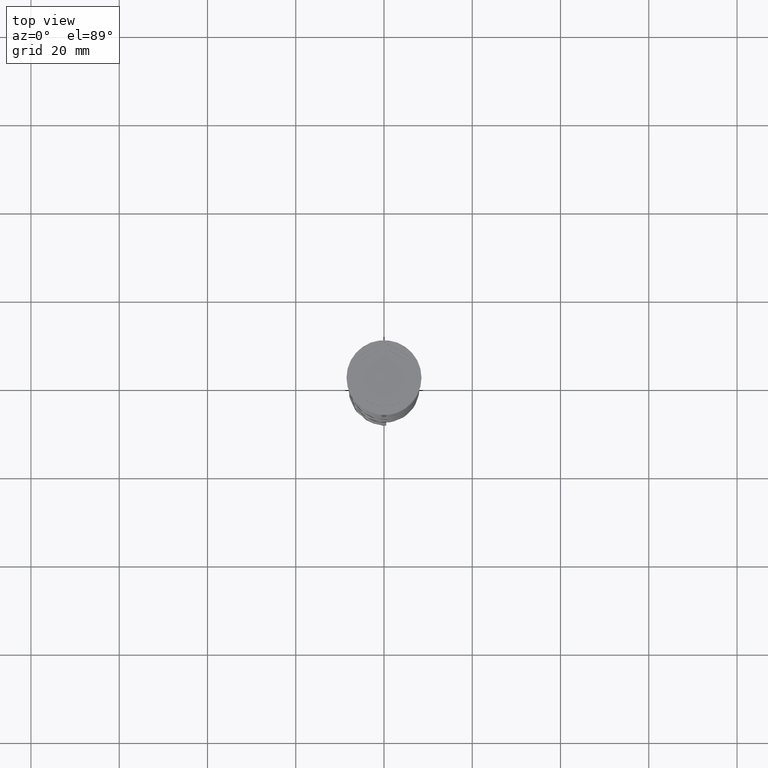
[diagram: clean part render]
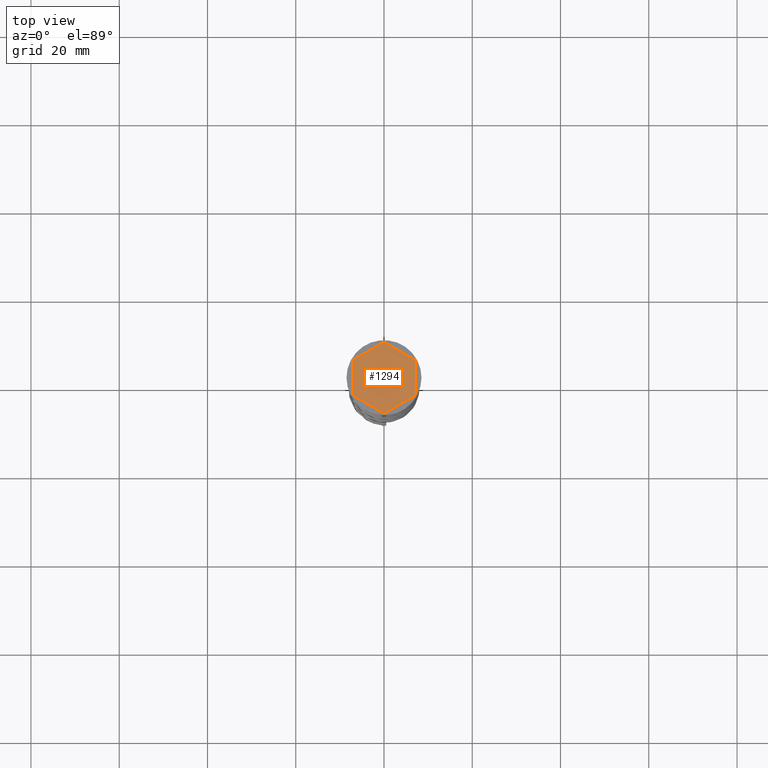
[diagram: same view with one face highlighted and labeled with its STEP entity id]
A machine part, top view. The second image highlights one B-rep face of the part: STEP entity #1294.
In plain terms, the highlighted planar face has unit normal (0, 0, 1).
Its self-contained STEP definition (entity closure, byte-faithful):
#62 = CARTESIAN_POINT ( 'NONE',  ( 7.000000000000000000, -4.041451884327381450, -1.000000000000000000 ) ) ;
#75 = CARTESIAN_POINT ( 'NONE',  ( -6.000000000000000000, -3.464101615137754830, -1.000000000000000888 ) ) ;
#84 = AXIS2_PLACEMENT_3D ( 'NONE', #238, #3390, #3127 ) ;
#92 = CARTESIAN_POINT ( 'NONE',  ( -5.165063509461097269, -3.946152422706633356, -1.000000000000000888 ) ) ;
#156 = VECTOR ( 'NONE', #894, 1000.000000000000227 ) ;
#197 = VERTEX_POINT ( 'NONE', #289 ) ;
#222 = DIRECTION ( 'NONE',  ( 0.8660254037844388186, -0.4999999999999998335, 0.000000000000000000 ) ) ;
#223 = VECTOR ( 'NONE', #1587, 1000.000000000000000 ) ;
#234 = PLANE ( 'NONE',  #2565 ) ;
#238 = CARTESIAN_POINT ( 'NONE',  ( 0.000000000000000000, 0.000000000000000000, -1.000000000000000000 ) ) ;
#241 = DIRECTION ( 'NONE',  ( -0.8660254037844387076, 0.4999999999999998890, 0.000000000000000000 ) ) ;
#250 = DIRECTION ( 'NONE',  ( 1.000000000000000000, 0.000000000000000000, 0.000000000000000000 ) ) ;
#261 = CARTESIAN_POINT ( 'NONE',  ( 6.000000000000000888, 2.500000000000000444, -1.000000000000000888 ) ) ;
#267 = VERTEX_POINT ( 'NONE', #2673 ) ;
#275 = CARTESIAN_POINT ( 'NONE',  ( 0.000000000000000000, 6.928203230275507885, -1.000000000000000888 ) ) ;
#289 = CARTESIAN_POINT ( 'NONE',  ( 0.8349364905389008440, -6.446152422706633800, -1.000000000000000888 ) ) ;
#311 = EDGE_CURVE ( 'NONE', #3695, #363, #2095, .T. ) ;
#333 = EDGE_CURVE ( 'NONE', #1408, #887, #3214, .T. ) ;
#350 = VERTEX_POINT ( 'NONE', #2150 ) ;
#363 = VERTEX_POINT ( 'NONE', #1551 ) ;
#379 = VERTEX_POINT ( 'NONE', #2131 ) ;
#382 = DIRECTION ( 'NONE',  ( 0.000000000000000000, 1.000000000000000000, 0.000000000000000000 ) ) ;
#393 = AXIS2_PLACEMENT_3D ( 'NONE', #1634, #3374, #2774 ) ;
#401 = ORIENTED_EDGE ( 'NONE', *, *, #311, .F. ) ;
#406 = EDGE_CURVE ( 'NONE', #197, #1318, #1903, .T. ) ;
#419 = CARTESIAN_POINT ( 'NONE',  ( 0.000000000000000000, 0.000000000000000000, -1.000000000000000000 ) ) ;
#470 = CARTESIAN_POINT ( 'NONE',  ( 2.174016704710901386E-15, -8.082903768654762899, -1.000000000000000000 ) ) ;
#492 = CARTESIAN_POINT ( 'NONE',  ( 5.999999999999999112, -2.500000000000003109, -1.000000000000000888 ) ) ;
#528 = EDGE_CURVE ( 'NONE', #1860, #629, #2262, .T. ) ;
#557 = CARTESIAN_POINT ( 'NONE',  ( -6.500000000000000888, 0.000000000000000000, -1.000000000000000000 ) ) ;
#565 = CARTESIAN_POINT ( 'NONE',  ( 0.000000000000000000, 8.082903768654762899, -1.000000000000000000 ) ) ;
#567 = AXIS2_PLACEMENT_3D ( 'NONE', #3375, #1110, #1041 ) ;
#580 = CIRCLE ( 'NONE', #84, 6.500000000000000888 ) ;
#589 = DIRECTION ( 'NONE',  ( -0.8660254037844385966, -0.4999999999999999445, 0.000000000000000000 ) ) ;
#613 = EDGE_CURVE ( 'NONE', #1326, #3309, #3165, .T. ) ;
#620 = DIRECTION ( 'NONE',  ( 0.000000000000000000, 0.000000000000000000, 1.000000000000000000 ) ) ;
#629 = VERTEX_POINT ( 'NONE', #1131 ) ;
#663 = ORIENTED_EDGE ( 'NONE', *, *, #3179, .F. ) ;
#682 = FACE_BOUND ( 'NONE', #1950, .T. ) ;
#715 = ORIENTED_EDGE ( 'NONE', *, *, #333, .F. ) ;
#721 = VERTEX_POINT ( 'NONE', #492 ) ;
#737 = DIRECTION ( 'NONE',  ( -2.503857664561932376E-16, -1.000000000000000000, 0.000000000000000000 ) ) ;
#743 = CARTESIAN_POINT ( 'NONE',  ( 5.165063509461097269, -3.946152422706631580, -1.000000000000000888 ) ) ;
#747 = CARTESIAN_POINT ( 'NONE',  ( -7.000000000000000888, 4.041451884327381450, -1.000000000000000000 ) ) ;
#760 = CARTESIAN_POINT ( 'NONE',  ( 5.999999999999999112, -3.464101615137755719, -1.000000000000000888 ) ) ;
#868 = AXIS2_PLACEMENT_3D ( 'NONE', #2343, #921, #1487 ) ;
#887 = VERTEX_POINT ( 'NONE', #1216 ) ;
#894 = DIRECTION ( 'NONE',  ( 0.8660254037844384856, 0.5000000000000001110, 0.000000000000000000 ) ) ;
#921 = DIRECTION ( 'NONE',  ( 0.000000000000000000, 0.000000000000000000, 1.000000000000000000 ) ) ;
#925 = ORIENTED_EDGE ( 'NONE', *, *, #2054, .T. ) ;
#968 = EDGE_CURVE ( 'NONE', #363, #1900, #2614, .T. ) ;
#971 = FACE_BOUND ( 'NONE', #1127, .T. ) ;
#982 = EDGE_CURVE ( 'NONE', #3309, #1326, #2267, .T. ) ;
#985 = EDGE_LOOP ( 'NONE', ( #2465, #401, #1289 ) ) ;
#1018 = EDGE_CURVE ( 'NONE', #379, #1860, #2658, .T. ) ;
#1021 = CARTESIAN_POINT ( 'NONE',  ( -6.000000000000000000, 3.464101615137752166, -1.000000000000000888 ) ) ;
#1036 = DIRECTION ( 'NONE',  ( 0.000000000000000000, -1.000000000000000000, 0.000000000000000000 ) ) ;
#1041 = DIRECTION ( 'NONE',  ( 1.000000000000000000, 0.000000000000000000, 0.000000000000000000 ) ) ;
#1077 = CARTESIAN_POINT ( 'NONE',  ( 6.000000000000000888, 3.464101615137753942, -1.000000000000000888 ) ) ;
#1110 = DIRECTION ( 'NONE',  ( 0.000000000000000000, 0.000000000000000000, 1.000000000000000000 ) ) ;
#1127 = EDGE_LOOP ( 'NONE', ( #1793, #1452 ) ) ;
#1131 = CARTESIAN_POINT ( 'NONE',  ( 0.000000000000000000, 8.082903768654762899, -1.000000000000000000 ) ) ;
#1151 = EDGE_CURVE ( 'NONE', #2518, #2534, #1163, .T. ) ;
#1163 = LINE ( 'NONE', #3458, #1963 ) ;
#1216 = CARTESIAN_POINT ( 'NONE',  ( -0.8349364905389056180, -6.446152422706632024, -1.000000000000000888 ) ) ;
#1248 = DIRECTION ( 'NONE',  ( 0.000000000000000000, 0.000000000000000000, 1.000000000000000000 ) ) ;
#1289 = ORIENTED_EDGE ( 'NONE', *, *, #1368, .F. ) ;
#1294 = ADVANCED_FACE ( 'NONE', ( #971, #2124, #3267, #682, #1843, #1601, #3619 ), #234, .T. ) ;
#1303 = AXIS2_PLACEMENT_3D ( 'NONE', #3206, #620, #1783 ) ;
#1318 = VERTEX_POINT ( 'NONE', #743 ) ;
#1326 = VERTEX_POINT ( 'NONE', #2202 ) ;
#1330 = VERTEX_POINT ( 'NONE', #1645 ) ;
#1366 = VECTOR ( 'NONE', #241, 1000.000000000000114 ) ;
#1368 = EDGE_CURVE ( 'NONE', #1900, #3695, #2208, .T. ) ;
#1392 = ORIENTED_EDGE ( 'NONE', *, *, #3382, .T. ) ;
#1408 = VERTEX_POINT ( 'NONE', #92 ) ;
#1419 = CARTESIAN_POINT ( 'NONE',  ( 7.000000000000000888, 4.041451884327382338, -1.000000000000000000 ) ) ;
#1452 = ORIENTED_EDGE ( 'NONE', *, *, #3369, .F. ) ;
#1487 = DIRECTION ( 'NONE',  ( 1.000000000000000000, 0.000000000000000000, 0.000000000000000000 ) ) ;
#1549 = VECTOR ( 'NONE', #589, 1000.000000000000114 ) ;
#1551 = CARTESIAN_POINT ( 'NONE',  ( -6.000000000000000000, 2.500000000000001776, -1.000000000000000888 ) ) ;
#1587 = DIRECTION ( 'NONE',  ( -0.8660254037844385966, 0.5000000000000001110, 0.000000000000000000 ) ) ;
#1601 = FACE_BOUND ( 'NONE', #3472, .T. ) ;
#1603 = DIRECTION ( 'NONE',  ( -0.8660254037844387076, -0.4999999999999998890, 0.000000000000000000 ) ) ;
#1605 = LINE ( 'NONE', #747, #1856 ) ;
#1606 = AXIS2_PLACEMENT_3D ( 'NONE', #419, #1248, #2957 ) ;
#1634 = CARTESIAN_POINT ( 'NONE',  ( 0.000000000000000000, 0.000000000000000000, -1.000000000000000000 ) ) ;
#1645 = CARTESIAN_POINT ( 'NONE',  ( 0.8349364905389003999, 6.446152422706633800, -1.000000000000000888 ) ) ;
#1684 = DIRECTION ( 'NONE',  ( 0.000000000000000000, 0.000000000000000000, 1.000000000000000000 ) ) ;
#1703 = DIRECTION ( 'NONE',  ( 0.000000000000000000, 0.000000000000000000, 1.000000000000000000 ) ) ;
#1706 = ORIENTED_EDGE ( 'NONE', *, *, #2884, .F. ) ;
#1783 = DIRECTION ( 'NONE',  ( 1.000000000000000000, 0.000000000000000000, 0.000000000000000000 ) ) ;
#1793 = ORIENTED_EDGE ( 'NONE', *, *, #2990, .F. ) ;
#1798 = VECTOR ( 'NONE', #222, 999.9999999999998863 ) ;
#1843 = FACE_BOUND ( 'NONE', #985, .T. ) ;
#1846 = AXIS2_PLACEMENT_3D ( 'NONE', #3066, #1703, #250 ) ;
#1856 = VECTOR ( 'NONE', #1036, 1000.000000000000000 ) ;
#1860 = VERTEX_POINT ( 'NONE', #1419 ) ;
#1872 = ORIENTED_EDGE ( 'NONE', *, *, #528, .T. ) ;
#1885 = ORIENTED_EDGE ( 'NONE', *, *, #1018, .T. ) ;
#1900 = VERTEX_POINT ( 'NONE', #557 ) ;
#1903 = CIRCLE ( 'NONE', #567, 6.500000000000000888 ) ;
#1920 = CARTESIAN_POINT ( 'NONE',  ( -0.8349364905388981795, 6.446152422706633800, -1.000000000000000888 ) ) ;
#1947 = LINE ( 'NONE', #760, #2151 ) ;
#1950 = EDGE_LOOP ( 'NONE', ( #715, #1706 ) ) ;
#1963 = VECTOR ( 'NONE', #2035, 1000.000000000000114 ) ;
#1988 = LINE ( 'NONE', #565, #1549 ) ;
#2028 = EDGE_CURVE ( 'NONE', #721, #2136, #580, .T. ) ;
#2035 = DIRECTION ( 'NONE',  ( 0.8660254037844387076, -0.4999999999999997224, 0.000000000000000000 ) ) ;
#2054 = EDGE_CURVE ( 'NONE', #629, #267, #1988, .T. ) ;
#2076 = ORIENTED_EDGE ( 'NONE', *, *, #3541, .T. ) ;
#2095 = LINE ( 'NONE', #1021, #3516 ) ;
#2124 = FACE_BOUND ( 'NONE', #2776, .T. ) ;
#2131 = CARTESIAN_POINT ( 'NONE',  ( 7.000000000000000000, -4.041451884327381450, -1.000000000000000000 ) ) ;
#2136 = VERTEX_POINT ( 'NONE', #261 ) ;
#2150 = CARTESIAN_POINT ( 'NONE',  ( 5.165063509461097269, 3.946152422706633356, -1.000000000000000888 ) ) ;
#2151 = VECTOR ( 'NONE', #737, 1000.000000000000000 ) ;
#2192 = ORIENTED_EDGE ( 'NONE', *, *, #1151, .T. ) ;
#2202 = CARTESIAN_POINT ( 'NONE',  ( -5.165063509461101710, 3.946152422706626250, -1.000000000000000888 ) ) ;
#2208 = CIRCLE ( 'NONE', #1846, 6.500000000000000888 ) ;
#2223 = CARTESIAN_POINT ( 'NONE',  ( 0.000000000000000000, 0.000000000000000000, -1.000000000000000000 ) ) ;
#2262 = LINE ( 'NONE', #2525, #1366 ) ;
#2267 = CIRCLE ( 'NONE', #1303, 6.500000000000000888 ) ;
#2333 = VECTOR ( 'NONE', #1603, 1000.000000000000000 ) ;
#2343 = CARTESIAN_POINT ( 'NONE',  ( 0.000000000000000000, 0.000000000000000000, -1.000000000000000000 ) ) ;
#2357 = ORIENTED_EDGE ( 'NONE', *, *, #2401, .F. ) ;
#2401 = EDGE_CURVE ( 'NONE', #2136, #721, #1947, .T. ) ;
#2434 = VECTOR ( 'NONE', #2560, 1000.000000000000000 ) ;
#2435 = EDGE_LOOP ( 'NONE', ( #2555, #663 ) ) ;
#2465 = ORIENTED_EDGE ( 'NONE', *, *, #968, .F. ) ;
#2518 = VERTEX_POINT ( 'NONE', #3316 ) ;
#2525 = CARTESIAN_POINT ( 'NONE',  ( 7.000000000000000888, 4.041451884327382338, -1.000000000000000000 ) ) ;
#2526 = LINE ( 'NONE', #3684, #156 ) ;
#2534 = VERTEX_POINT ( 'NONE', #470 ) ;
#2555 = ORIENTED_EDGE ( 'NONE', *, *, #406, .F. ) ;
#2560 = DIRECTION ( 'NONE',  ( 0.8660254037844385966, 0.5000000000000001110, -0.000000000000000000 ) ) ;
#2563 = VECTOR ( 'NONE', #3245, 1000.000000000000000 ) ;
#2565 = AXIS2_PLACEMENT_3D ( 'NONE', #2223, #1684, #3325 ) ;
#2614 = CIRCLE ( 'NONE', #868, 6.500000000000000888 ) ;
#2658 = LINE ( 'NONE', #62, #2563 ) ;
#2673 = CARTESIAN_POINT ( 'NONE',  ( -7.000000000000000888, 4.041451884327381450, -1.000000000000000000 ) ) ;
#2690 = EDGE_LOOP ( 'NONE', ( #1872, #925, #2076, #2192, #1392, #1885 ) ) ;
#2744 = CARTESIAN_POINT ( 'NONE',  ( -1.301042606982605321E-15, -6.928203230275509661, -1.000000000000000888 ) ) ;
#2770 = LINE ( 'NONE', #2744, #2333 ) ;
#2774 = DIRECTION ( 'NONE',  ( 1.000000000000000000, 0.000000000000000000, 0.000000000000000000 ) ) ;
#2776 = EDGE_LOOP ( 'NONE', ( #3636, #2357 ) ) ;
#2884 = EDGE_CURVE ( 'NONE', #887, #1408, #3169, .T. ) ;
#2957 = DIRECTION ( 'NONE',  ( 1.000000000000000000, 0.000000000000000000, 0.000000000000000000 ) ) ;
#2990 = EDGE_CURVE ( 'NONE', #350, #1330, #3471, .T. ) ;
#3004 = ORIENTED_EDGE ( 'NONE', *, *, #982, .F. ) ;
#3066 = CARTESIAN_POINT ( 'NONE',  ( 0.000000000000000000, 0.000000000000000000, -1.000000000000000000 ) ) ;
#3127 = DIRECTION ( 'NONE',  ( 1.000000000000000000, 0.000000000000000000, 0.000000000000000000 ) ) ;
#3138 = ORIENTED_EDGE ( 'NONE', *, *, #613, .F. ) ;
#3165 = LINE ( 'NONE', #275, #2434 ) ;
#3169 = LINE ( 'NONE', #75, #223 ) ;
#3179 = EDGE_CURVE ( 'NONE', #1318, #197, #2770, .T. ) ;
#3188 = CARTESIAN_POINT ( 'NONE',  ( -6.000000000000000000, -2.500000000000001776, -1.000000000000000888 ) ) ;
#3206 = CARTESIAN_POINT ( 'NONE',  ( 0.000000000000000000, 0.000000000000000000, -1.000000000000000000 ) ) ;
#3214 = CIRCLE ( 'NONE', #1606, 6.500000000000000888 ) ;
#3245 = DIRECTION ( 'NONE',  ( 1.073081856240827703E-16, 1.000000000000000000, 0.000000000000000000 ) ) ;
#3267 = FACE_BOUND ( 'NONE', #2435, .T. ) ;
#3309 = VERTEX_POINT ( 'NONE', #1920 ) ;
#3316 = CARTESIAN_POINT ( 'NONE',  ( -7.000000000000000888, -4.041451884327381450, -1.000000000000000000 ) ) ;
#3325 = DIRECTION ( 'NONE',  ( 1.000000000000000000, 0.000000000000000000, -0.000000000000000000 ) ) ;
#3369 = EDGE_CURVE ( 'NONE', #1330, #350, #3665, .T. ) ;
#3374 = DIRECTION ( 'NONE',  ( 0.000000000000000000, 0.000000000000000000, 1.000000000000000000 ) ) ;
#3375 = CARTESIAN_POINT ( 'NONE',  ( 0.000000000000000000, 0.000000000000000000, -1.000000000000000000 ) ) ;
#3382 = EDGE_CURVE ( 'NONE', #2534, #379, #2526, .T. ) ;
#3390 = DIRECTION ( 'NONE',  ( 0.000000000000000000, 0.000000000000000000, 1.000000000000000000 ) ) ;
#3458 = CARTESIAN_POINT ( 'NONE',  ( -7.000000000000000888, -4.041451884327381450, -1.000000000000000000 ) ) ;
#3471 = CIRCLE ( 'NONE', #393, 6.500000000000000888 ) ;
#3472 = EDGE_LOOP ( 'NONE', ( #3004, #3138 ) ) ;
#3516 = VECTOR ( 'NONE', #382, 1000.000000000000000 ) ;
#3541 = EDGE_CURVE ( 'NONE', #267, #2518, #1605, .T. ) ;
#3619 = FACE_OUTER_BOUND ( 'NONE', #2690, .T. ) ;
#3636 = ORIENTED_EDGE ( 'NONE', *, *, #2028, .F. ) ;
#3665 = LINE ( 'NONE', #1077, #1798 ) ;
#3684 = CARTESIAN_POINT ( 'NONE',  ( 2.174016704710901386E-15, -8.082903768654762899, -1.000000000000000000 ) ) ;
#3695 = VERTEX_POINT ( 'NONE', #3188 ) ;